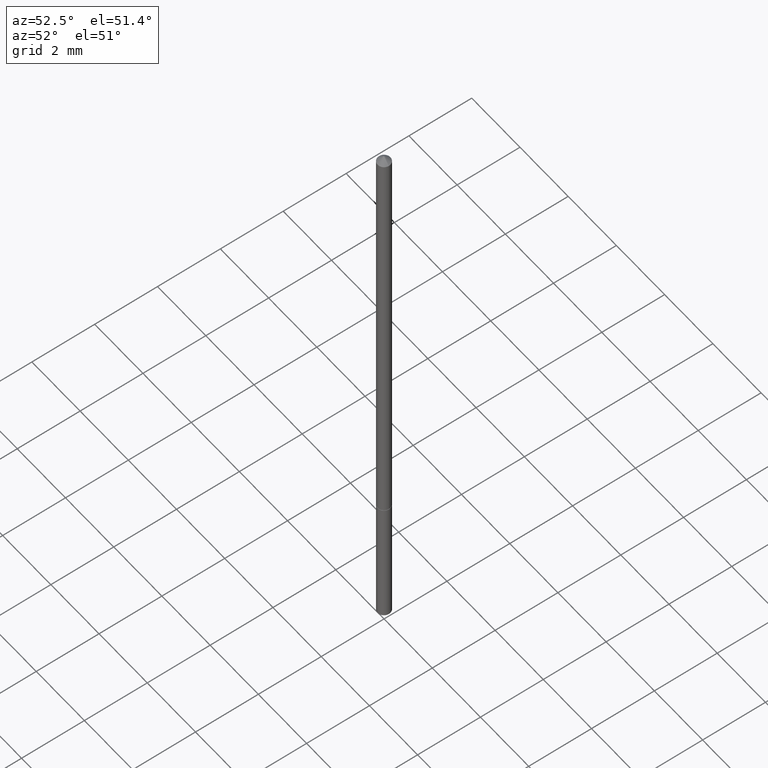
[diagram: clean part render]
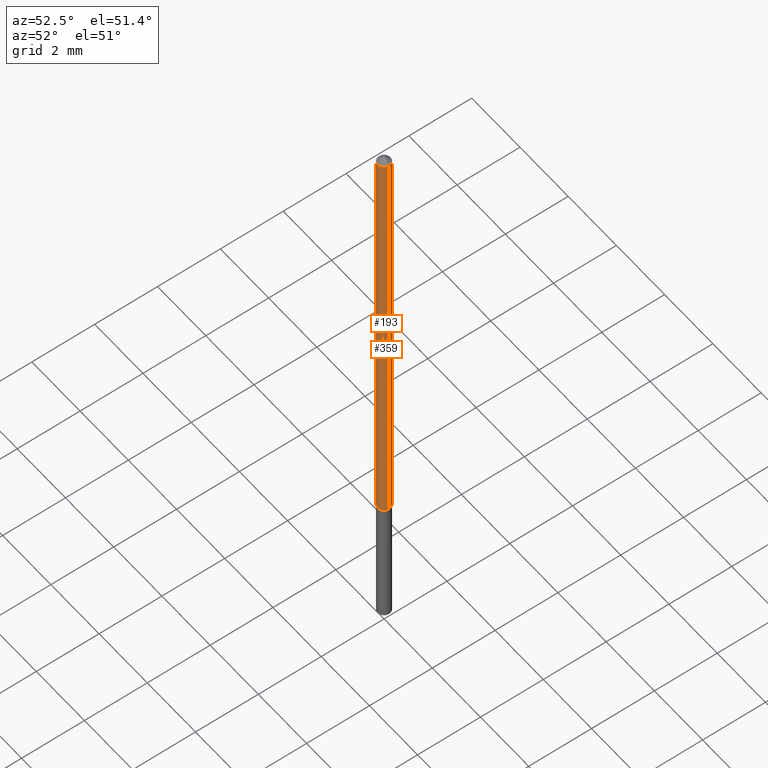
[diagram: same view with one multi-face feature highlighted, each face labeled with its STEP entity id]
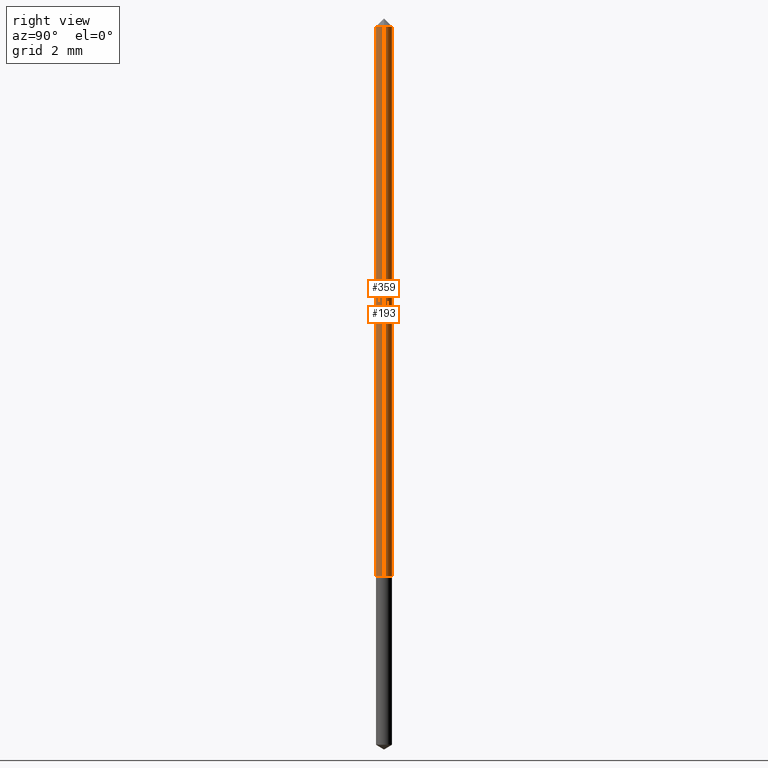
[diagram: same view with one multi-face feature highlighted, each face labeled with its STEP entity id]
A machine part, auxiliary view. The highlighted faces form ONE feature: a constant-radius fillet chain: 2 tangent blend faces with common blend radius 0.2032 mm. The faces share edges in the B-rep.
A second angle (right view) of the same feature is appended — it is thin or edge-on in the first view.
Their STEP definitions:
[1] entity #193 (Cylinder):
#2 = DIRECTION ( 'NONE',  ( -2.445468806185136597E-29, 3.491481338843145583E-15, 1.000000000000000000 ) ) ;
#6 = VECTOR ( 'NONE', #196, 39.37007874015748143 ) ;
#34 = CARTESIAN_POINT ( 'NONE',  ( 1.413480969975009175E-29, -2.018076213851338589E-15, -0.5780000000000000693 ) ) ;
#44 = VECTOR ( 'NONE', #225, 39.37007874015748143 ) ;
#49 = LINE ( 'NONE', #191, #44 ) ;
#76 = CIRCLE ( 'NONE', #139, 0.008000000000000071290 ) ;
#82 = LINE ( 'NONE', #336, #6 ) ;
#89 = CYLINDRICAL_SURFACE ( 'NONE', #154, 0.008000000000000036596 ) ;
#102 = ORIENTED_EDGE ( 'NONE', *, *, #179, .F. ) ;
#108 = DIRECTION ( 'NONE',  ( 1.000000000000000000, -6.982962677686270655E-15, 0.000000000000000000 ) ) ;
#111 = VERTEX_POINT ( 'NONE', #293 ) ;
#127 = CARTESIAN_POINT ( 'NONE',  ( -0.008000000000000003636, -1.006749083984283610E-15, -0.03125000000000020123 ) ) ;
#136 = ORIENTED_EDGE ( 'NONE', *, *, #339, .T. ) ;
#139 = AXIS2_PLACEMENT_3D ( 'NONE', #34, #2, #108 ) ;
#144 = EDGE_LOOP ( 'NONE', ( #337, #136, #102, #341 ) ) ;
#154 = AXIS2_PLACEMENT_3D ( 'NONE', #218, #278, #333 ) ;
#159 = CIRCLE ( 'NONE', #228, 0.008000000000000003636 ) ;
#161 = CARTESIAN_POINT ( 'NONE',  ( -0.008000000000000071290, -1.961232794990530130E-15, -0.5780000000000000693 ) ) ;
#179 = EDGE_CURVE ( 'NONE', #330, #260, #159, .T. ) ;
#187 = DIRECTION ( 'NONE',  ( -2.445468806185136597E-29, 3.491481338843145583E-15, 1.000000000000000000 ) ) ;
#191 = CARTESIAN_POINT ( 'NONE',  ( 0.008000000000000036596, -5.586370142149039450E-17, 3.900941420636766553E-31 ) ) ;
#193 = ADVANCED_FACE ( 'NONE', ( #239 ), #89, .T. ) ;
#196 = DIRECTION ( 'NONE',  ( -2.445468806185136877E-29, 3.491481338843145188E-15, 1.000000000000000000 ) ) ;
#218 = CARTESIAN_POINT ( 'NONE',  ( 0.000000000000000000, 0.000000000000000000, 0.000000000000000000 ) ) ;
#225 = DIRECTION ( 'NONE',  ( -2.445468806185136877E-29, 3.491481338843145188E-15, 1.000000000000000000 ) ) ;
#228 = AXIS2_PLACEMENT_3D ( 'NONE', #352, #187, #299 ) ;
#239 = FACE_OUTER_BOUND ( 'NONE', #144, .T. ) ;
#248 = EDGE_CURVE ( 'NONE', #111, #330, #49, .T. ) ;
#255 = CARTESIAN_POINT ( 'NONE',  ( 0.008000000000000003636, -1.649724932603391870E-16, -0.03125000000000020123 ) ) ;
#260 = VERTEX_POINT ( 'NONE', #127 ) ;
#273 = VERTEX_POINT ( 'NONE', #161 ) ;
#278 = DIRECTION ( 'NONE',  ( -2.445468806185136597E-29, 3.491481338843145583E-15, 1.000000000000000000 ) ) ;
#293 = CARTESIAN_POINT ( 'NONE',  ( 0.008000000000000071290, -2.073939915272829070E-15, -0.5780000000000000693 ) ) ;
#299 = DIRECTION ( 'NONE',  ( 1.000000000000000000, -6.982962677686268288E-15, 0.000000000000000000 ) ) ;
#326 = EDGE_CURVE ( 'NONE', #111, #273, #76, .T. ) ;
#330 = VERTEX_POINT ( 'NONE', #255 ) ;
#333 = DIRECTION ( 'NONE',  ( 1.000000000000000000, -6.982962677686267499E-15, 4.876176775795935793E-29 ) ) ;
#336 = CARTESIAN_POINT ( 'NONE',  ( -0.008000000000000036596, 5.684341886080827490E-17, -3.935148072203943060E-31 ) ) ;
#337 = ORIENTED_EDGE ( 'NONE', *, *, #326, .T. ) ;
#339 = EDGE_CURVE ( 'NONE', #273, #260, #82, .T. ) ;
#341 = ORIENTED_EDGE ( 'NONE', *, *, #248, .F. ) ;
#352 = CARTESIAN_POINT ( 'NONE',  ( 7.642090019328601786E-31, -1.091087918388490144E-16, -0.03125000000000020123 ) ) ;
[2] entity #359 (Cylinder):
#6 = VECTOR ( 'NONE', #196, 39.37007874015748143 ) ;
#26 = CARTESIAN_POINT ( 'NONE',  ( 0.000000000000000000, 0.000000000000000000, 0.000000000000000000 ) ) ;
#32 = DIRECTION ( 'NONE',  ( -2.445468806185136597E-29, 3.491481338843145583E-15, 1.000000000000000000 ) ) ;
#41 = DIRECTION ( 'NONE',  ( -2.445468806185136597E-29, 3.491481338843145583E-15, 1.000000000000000000 ) ) ;
#44 = VECTOR ( 'NONE', #225, 39.37007874015748143 ) ;
#49 = LINE ( 'NONE', #191, #44 ) ;
#55 = ORIENTED_EDGE ( 'NONE', *, *, #248, .T. ) ;
#64 = AXIS2_PLACEMENT_3D ( 'NONE', #117, #247, #296 ) ;
#82 = LINE ( 'NONE', #336, #6 ) ;
#83 = ORIENTED_EDGE ( 'NONE', *, *, #305, .T. ) ;
#88 = EDGE_CURVE ( 'NONE', #260, #330, #281, .T. ) ;
#110 = DIRECTION ( 'NONE',  ( 1.000000000000000000, -6.982962677686270655E-15, 0.000000000000000000 ) ) ;
#111 = VERTEX_POINT ( 'NONE', #293 ) ;
#117 = CARTESIAN_POINT ( 'NONE',  ( 7.642090019328601786E-31, -1.091087918388490144E-16, -0.03125000000000020123 ) ) ;
#127 = CARTESIAN_POINT ( 'NONE',  ( -0.008000000000000003636, -1.006749083984283610E-15, -0.03125000000000020123 ) ) ;
#137 = FACE_OUTER_BOUND ( 'NONE', #175, .T. ) ;
#161 = CARTESIAN_POINT ( 'NONE',  ( -0.008000000000000071290, -1.961232794990530130E-15, -0.5780000000000000693 ) ) ;
#174 = CARTESIAN_POINT ( 'NONE',  ( 1.413480969975009175E-29, -2.018076213851338589E-15, -0.5780000000000000693 ) ) ;
#175 = EDGE_LOOP ( 'NONE', ( #227, #83, #55, #309 ) ) ;
#184 = DIRECTION ( 'NONE',  ( 1.000000000000000000, -6.982962677686267499E-15, 4.876176775795935793E-29 ) ) ;
#191 = CARTESIAN_POINT ( 'NONE',  ( 0.008000000000000036596, -5.586370142149039450E-17, 3.900941420636766553E-31 ) ) ;
#196 = DIRECTION ( 'NONE',  ( -2.445468806185136877E-29, 3.491481338843145188E-15, 1.000000000000000000 ) ) ;
#211 = AXIS2_PLACEMENT_3D ( 'NONE', #174, #32, #110 ) ;
#225 = DIRECTION ( 'NONE',  ( -2.445468806185136877E-29, 3.491481338843145188E-15, 1.000000000000000000 ) ) ;
#227 = ORIENTED_EDGE ( 'NONE', *, *, #339, .F. ) ;
#247 = DIRECTION ( 'NONE',  ( -2.445468806185136597E-29, 3.491481338843145583E-15, 1.000000000000000000 ) ) ;
#248 = EDGE_CURVE ( 'NONE', #111, #330, #49, .T. ) ;
#255 = CARTESIAN_POINT ( 'NONE',  ( 0.008000000000000003636, -1.649724932603391870E-16, -0.03125000000000020123 ) ) ;
#260 = VERTEX_POINT ( 'NONE', #127 ) ;
#273 = VERTEX_POINT ( 'NONE', #161 ) ;
#281 = CIRCLE ( 'NONE', #64, 0.008000000000000003636 ) ;
#284 = CYLINDRICAL_SURFACE ( 'NONE', #302, 0.008000000000000036596 ) ;
#293 = CARTESIAN_POINT ( 'NONE',  ( 0.008000000000000071290, -2.073939915272829070E-15, -0.5780000000000000693 ) ) ;
#296 = DIRECTION ( 'NONE',  ( 1.000000000000000000, -6.982962677686268288E-15, 0.000000000000000000 ) ) ;
#302 = AXIS2_PLACEMENT_3D ( 'NONE', #26, #41, #184 ) ;
#305 = EDGE_CURVE ( 'NONE', #273, #111, #321, .T. ) ;
#309 = ORIENTED_EDGE ( 'NONE', *, *, #88, .F. ) ;
#321 = CIRCLE ( 'NONE', #211, 0.008000000000000071290 ) ;
#330 = VERTEX_POINT ( 'NONE', #255 ) ;
#336 = CARTESIAN_POINT ( 'NONE',  ( -0.008000000000000036596, 5.684341886080827490E-17, -3.935148072203943060E-31 ) ) ;
#339 = EDGE_CURVE ( 'NONE', #273, #260, #82, .T. ) ;
#359 = ADVANCED_FACE ( 'NONE', ( #137 ), #284, .T. ) ;